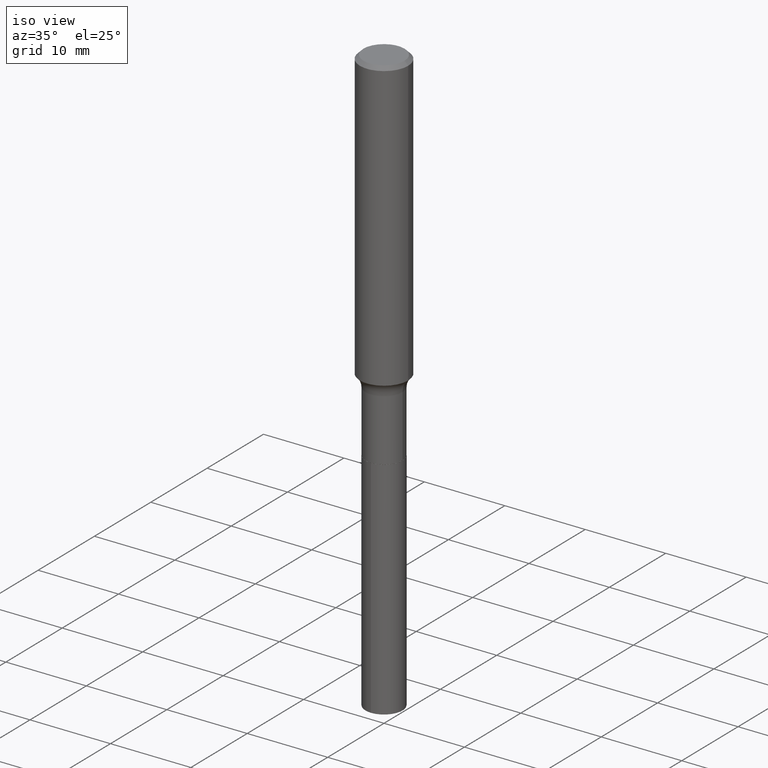
[diagram: clean part render]
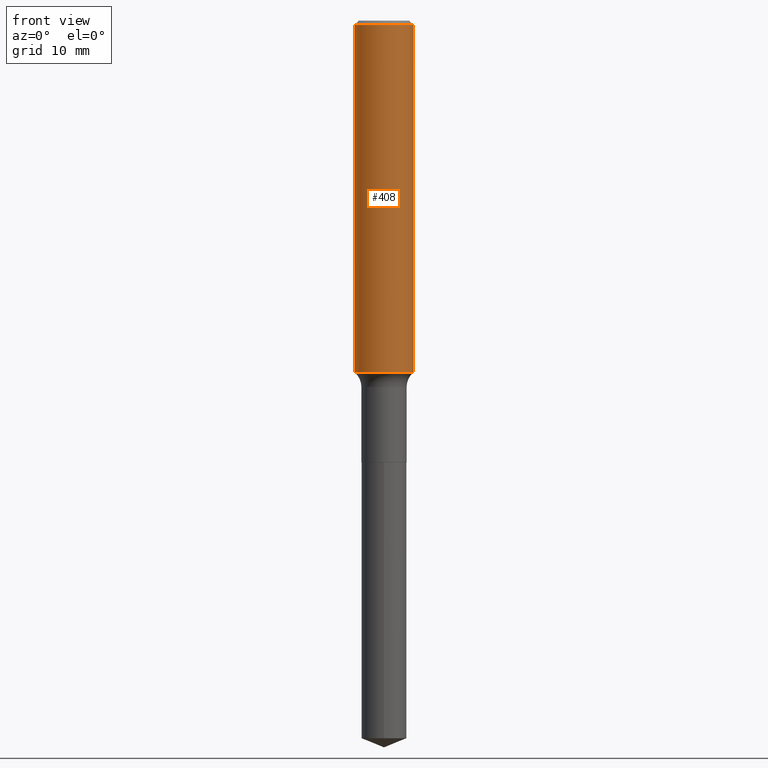
[diagram: tour spotlight — one face highlighted and labeled with its STEP entity id]
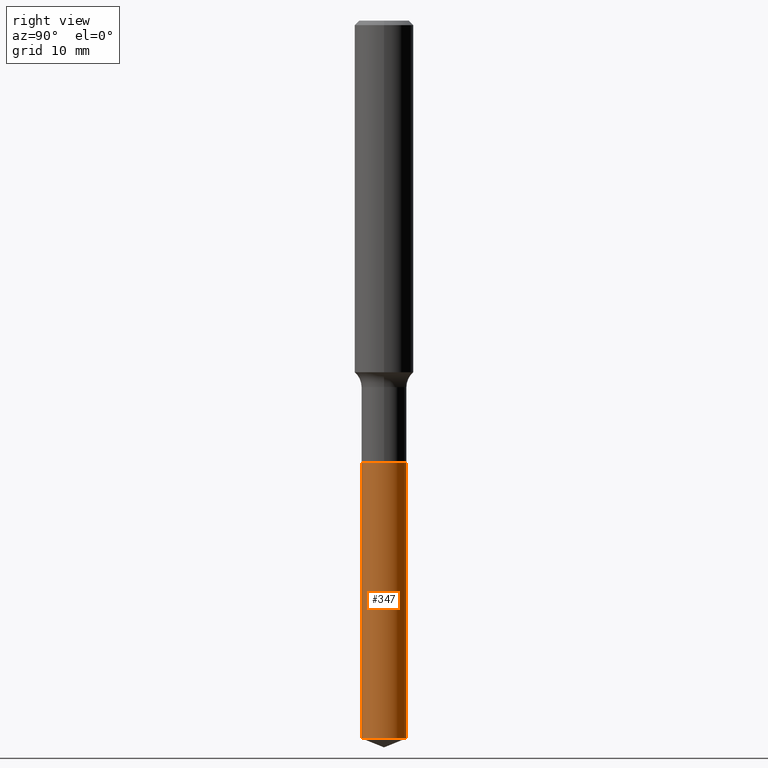
[diagram: tour spotlight — one face highlighted and labeled with its STEP entity id]
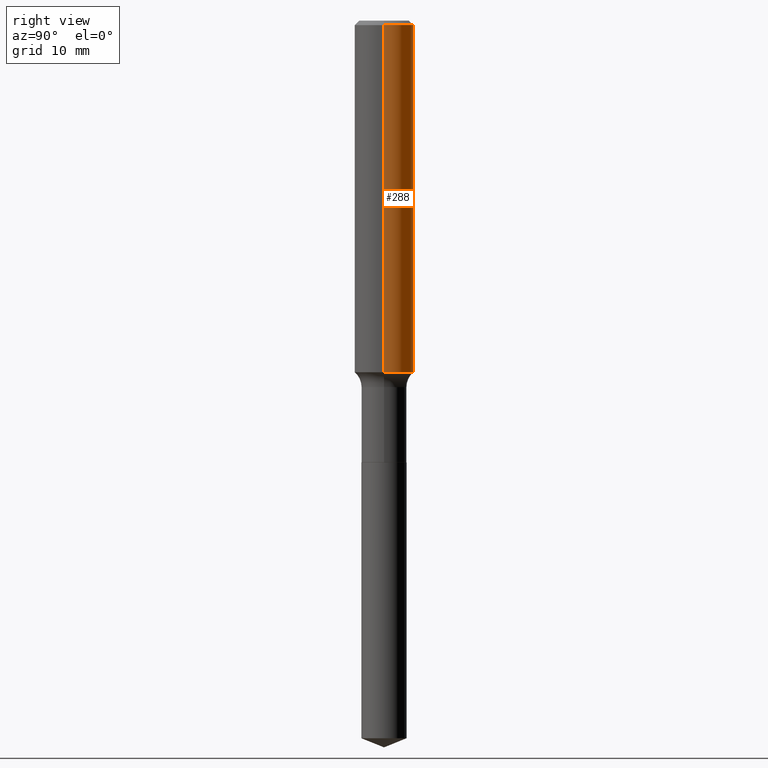
[diagram: tour spotlight — one face highlighted and labeled with its STEP entity id]
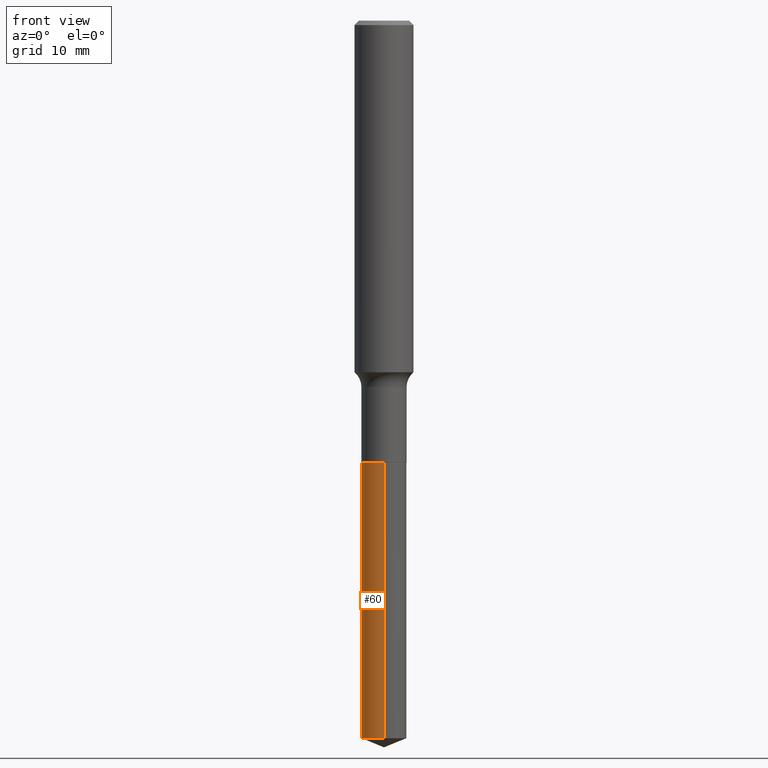
[diagram: tour spotlight — one face highlighted and labeled with its STEP entity id]
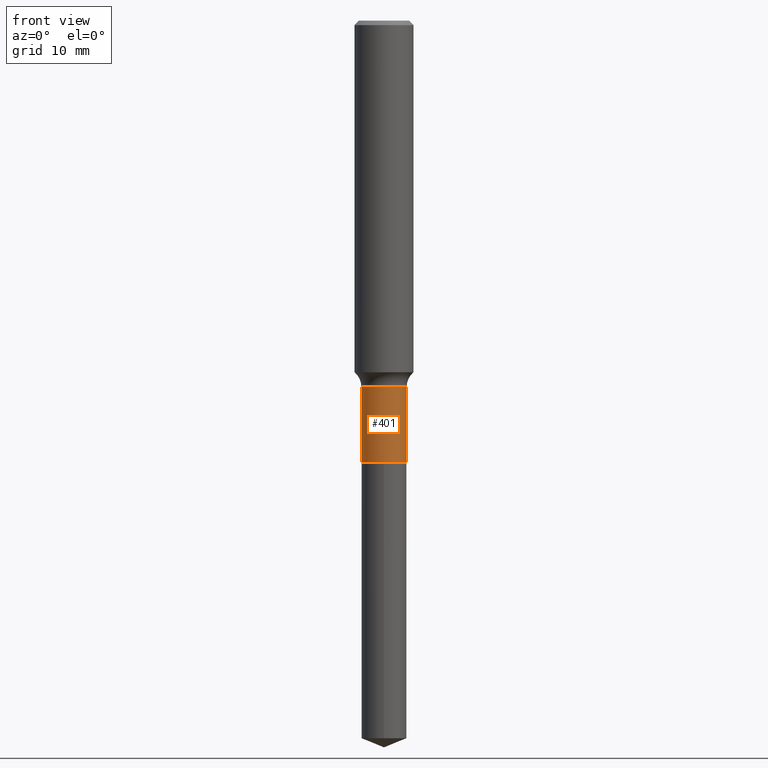
[diagram: tour spotlight — one face highlighted and labeled with its STEP entity id]
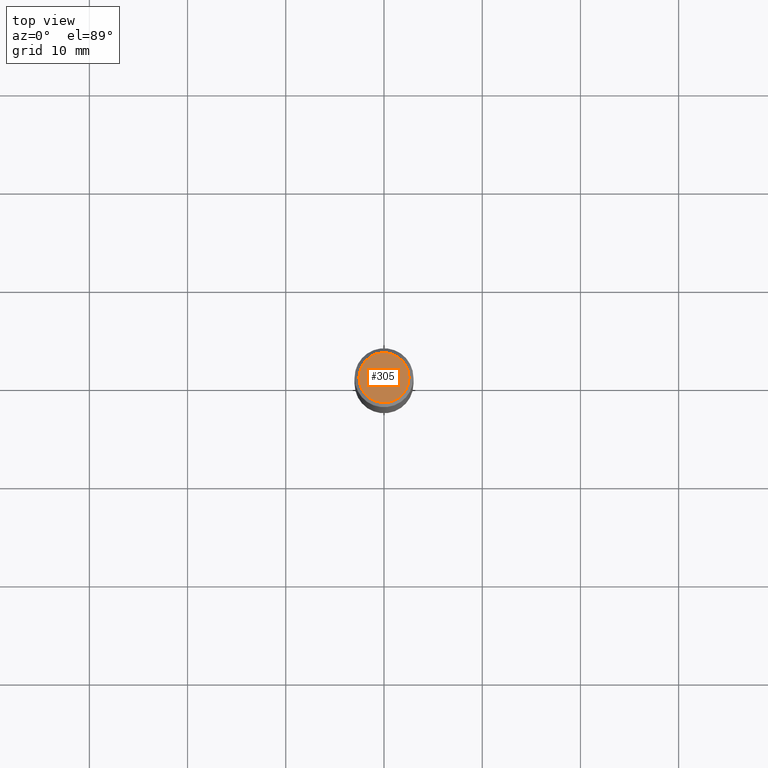
[diagram: tour spotlight — one face highlighted and labeled with its STEP entity id]
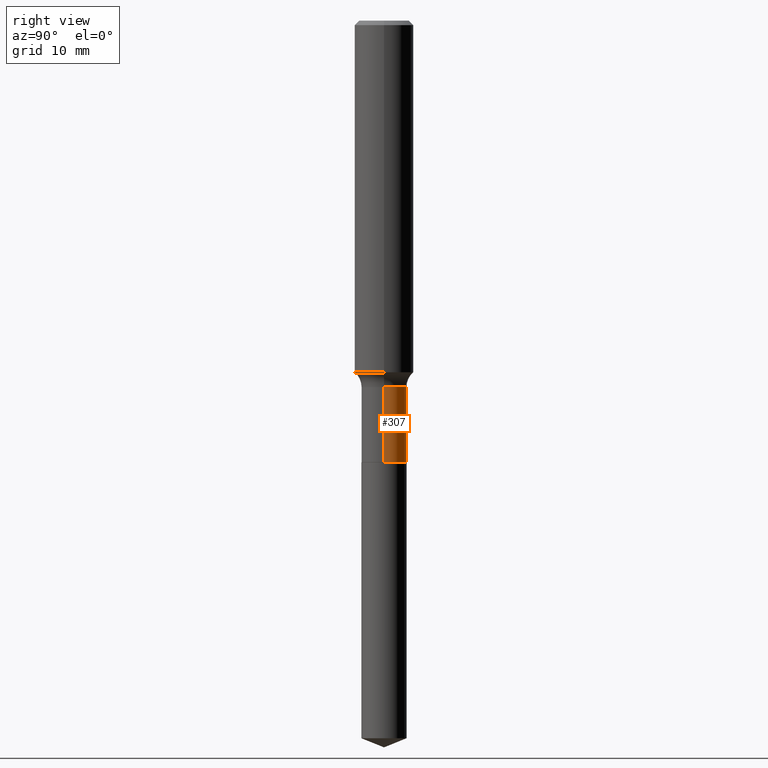
[diagram: tour spotlight — one face highlighted and labeled with its STEP entity id]
A machine part: a face-by-face anatomy tour. The part has 17 B-rep faces; the first image is the clean iso view, then the 7 largest visible faces are spotlighted one at a time (largest first), each with its STEP entity span.

Face 1 — front view, entity #408. In plain terms, the highlighted cylindrical surface (edge-blend (fillet) strip) has radius 2.9997 mm, axis along (-0, 0, 1).
Definition (entity closure, byte-faithful):
#27 = VERTEX_POINT ( 'NONE', #293 ) ;
#32 = DIRECTION ( 'NONE',  ( 1.000000000000000000, -6.982962677686263555E-15, 0.000000000000000000 ) ) ;
#51 = CYLINDRICAL_SURFACE ( 'NONE', #83, 0.1181000000000000799 ) ;
#61 = CARTESIAN_POINT ( 'NONE',  ( 0.1181000000000001909, -5.745275164048953464E-15, -1.409312207134572281 ) ) ;
#64 = VECTOR ( 'NONE', #268, 39.37007874015748143 ) ;
#83 = AXIS2_PLACEMENT_3D ( 'NONE', #123, #434, #355 ) ;
#105 = CARTESIAN_POINT ( 'NONE',  ( 0.1180999999999999966, -8.865394841523548556E-16, -0.01771500000000011607 ) ) ;
#121 = EDGE_CURVE ( 'NONE', #27, #480, #383, .T. ) ;
#123 = CARTESIAN_POINT ( 'NONE',  ( 0.000000000000000000, 0.000000000000000000, 0.000000000000000000 ) ) ;
#136 = VERTEX_POINT ( 'NONE', #105 ) ;
#150 = ORIENTED_EDGE ( 'NONE', *, *, #121, .T. ) ;
#157 = AXIS2_PLACEMENT_3D ( 'NONE', #381, #382, #343 ) ;
#161 = DIRECTION ( 'NONE',  ( -2.445468806185136877E-29, 3.491481338843145188E-15, 1.000000000000000000 ) ) ;
#183 = VECTOR ( 'NONE', #161, 39.37007874015748143 ) ;
#199 = LINE ( 'NONE', #428, #64 ) ;
#224 = ORIENTED_EDGE ( 'NONE', *, *, #319, .F. ) ;
#232 = LINE ( 'NONE', #457, #183 ) ;
#244 = ORIENTED_EDGE ( 'NONE', *, *, #419, .T. ) ;
#262 = DIRECTION ( 'NONE',  ( -2.445468806185136597E-29, 3.491481338843145583E-15, 1.000000000000000000 ) ) ;
#268 = DIRECTION ( 'NONE',  ( -2.445468806185136877E-29, 3.491481338843145188E-15, 1.000000000000000000 ) ) ;
#293 = CARTESIAN_POINT ( 'NONE',  ( -0.1181000000000001909, -4.081436300881524638E-15, -1.409312207134572281 ) ) ;
#300 = EDGE_LOOP ( 'NONE', ( #330, #150, #244, #224 ) ) ;
#312 = CARTESIAN_POINT ( 'NONE',  ( -0.1180999999999999966, -1.652068460933225925E-15, -0.01771500000000011607 ) ) ;
#319 = EDGE_CURVE ( 'NONE', #332, #136, #376, .T. ) ;
#330 = ORIENTED_EDGE ( 'NONE', *, *, #387, .F. ) ;
#332 = VERTEX_POINT ( 'NONE', #312 ) ;
#343 = DIRECTION ( 'NONE',  ( 1.000000000000000000, -6.982962677686266711E-15, 0.000000000000000000 ) ) ;
#355 = DIRECTION ( 'NONE',  ( 1.000000000000000000, -6.982962677686266711E-15, 4.876176775795936353E-29 ) ) ;
#376 = CIRCLE ( 'NONE', #157, 0.1180999999999999966 ) ;
#381 = CARTESIAN_POINT ( 'NONE',  ( 4.332147990156998495E-31, -6.185159191760672860E-17, -0.01771500000000011607 ) ) ;
#382 = DIRECTION ( 'NONE',  ( -2.445468806185136597E-29, 3.491481338843145583E-15, 1.000000000000000000 ) ) ;
#383 = CIRCLE ( 'NONE', #422, 0.1181000000000001632 ) ;
#387 = EDGE_CURVE ( 'NONE', #27, #332, #232, .T. ) ;
#408 = ADVANCED_FACE ( 'NONE', ( #427 ), #51, .T. ) ;
#419 = EDGE_CURVE ( 'NONE', #480, #136, #199, .T. ) ;
#422 = AXIS2_PLACEMENT_3D ( 'NONE', #436, #262, #32 ) ;
#427 = FACE_OUTER_BOUND ( 'NONE', #300, .T. ) ;
#428 = CARTESIAN_POINT ( 'NONE',  ( 0.1181000000000000799, -8.246878922347486570E-16, 5.758764772215004644E-30 ) ) ;
#434 = DIRECTION ( 'NONE',  ( -2.445468806185136597E-29, 3.491481338843145583E-15, 1.000000000000000000 ) ) ;
#436 = CARTESIAN_POINT ( 'NONE',  ( 3.446429040723522126E-29, -4.920587271814204412E-15, -1.409312207134572281 ) ) ;
#457 = CARTESIAN_POINT ( 'NONE',  ( -0.1181000000000000799, 8.391509709326788873E-16, -5.809262341591047988E-30 ) ) ;
#480 = VERTEX_POINT ( 'NONE', #61 ) ;

Face 2 — right view, entity #347. In plain terms, the highlighted cylindrical surface (edge-blend (fillet) strip) has radius 2.3 mm, axis along (-0, 0, 1).
Definition (entity closure, byte-faithful):
#7 = DIRECTION ( 'NONE',  ( -2.445428197971062335E-29, 3.491539492116975712E-15, 1.000000000000000000 ) ) ;
#12 = DIRECTION ( 'NONE',  ( -2.445428197971062615E-29, 3.491539492116975712E-15, 1.000000000000000000 ) ) ;
#21 = CARTESIAN_POINT ( 'NONE',  ( 6.433964472308411631E-16, 0.09054999999998999960, -2.876415425250627766 ) ) ;
#44 = DIRECTION ( 'NONE',  ( -2.445428197971062335E-29, 3.491539492116975712E-15, 1.000000000000000000 ) ) ;
#45 = CARTESIAN_POINT ( 'NONE',  ( 7.034139319316397846E-29, -1.004301504610307500E-14, -2.876415425250627322 ) ) ;
#48 = FACE_OUTER_BOUND ( 'NONE', #147, .T. ) ;
#82 = CARTESIAN_POINT ( 'NONE',  ( 4.331658896395732410E-29, -6.184460895492863090E-15, -1.771299999999999653 ) ) ;
#85 = LINE ( 'NONE', #386, #111 ) ;
#92 = ORIENTED_EDGE ( 'NONE', *, *, #340, .T. ) ;
#93 = VERTEX_POINT ( 'NONE', #356 ) ;
#111 = VECTOR ( 'NONE', #237, 39.37007874015748143 ) ;
#119 = CARTESIAN_POINT ( 'NONE',  ( 6.433964472308412617E-16, 0.09054999999999382987, -1.771300000000000097 ) ) ;
#122 = DIRECTION ( 'NONE',  ( -6.982962677686266711E-15, -1.000000000000000000, 3.016949744521549444E-15 ) ) ;
#126 = CARTESIAN_POINT ( 'NONE',  ( -6.323072704644481808E-16, -0.09055000000000619498, -1.771299999999999430 ) ) ;
#135 = VECTOR ( 'NONE', #12, 39.37007874015748143 ) ;
#147 = EDGE_LOOP ( 'NONE', ( #92, #255, #407, #325 ) ) ;
#148 = EDGE_CURVE ( 'NONE', #93, #403, #459, .T. ) ;
#176 = AXIS2_PLACEMENT_3D ( 'NONE', #82, #7, #122 ) ;
#184 = CARTESIAN_POINT ( 'NONE',  ( 4.331658896395732410E-29, -6.184460895492863090E-15, -1.771299999999999653 ) ) ;
#186 = DIRECTION ( 'NONE',  ( -2.445428197971062335E-29, 3.491539492116975712E-15, 1.000000000000000000 ) ) ;
#196 = AXIS2_PLACEMENT_3D ( 'NONE', #45, #44, #349 ) ;
#237 = DIRECTION ( 'NONE',  ( -2.445428197971062615E-29, 3.491539492116975712E-15, 1.000000000000000000 ) ) ;
#241 = CARTESIAN_POINT ( 'NONE',  ( -6.323072704644212610E-16, -0.09055000000001005300, -2.876415425250626878 ) ) ;
#255 = ORIENTED_EDGE ( 'NONE', *, *, #339, .T. ) ;
#257 = DIRECTION ( 'NONE',  ( -6.982962677686266711E-15, -1.000000000000000000, 3.016949744521549444E-15 ) ) ;
#271 = LINE ( 'NONE', #126, #135 ) ;
#325 = ORIENTED_EDGE ( 'NONE', *, *, #334, .F. ) ;
#334 = EDGE_CURVE ( 'NONE', #440, #93, #271, .T. ) ;
#339 = EDGE_CURVE ( 'NONE', #490, #403, #85, .T. ) ;
#340 = EDGE_CURVE ( 'NONE', #440, #490, #444, .T. ) ;
#347 = ADVANCED_FACE ( 'NONE', ( #48 ), #425, .T. ) ;
#349 = DIRECTION ( 'NONE',  ( -6.982962677686266711E-15, -1.000000000000000000, 6.033899489043098888E-15 ) ) ;
#356 = CARTESIAN_POINT ( 'NONE',  ( -6.323072704644481808E-16, -0.09055000000000619498, -1.771299999999999430 ) ) ;
#364 = AXIS2_PLACEMENT_3D ( 'NONE', #184, #186, #257 ) ;
#386 = CARTESIAN_POINT ( 'NONE',  ( 6.433964472308139474E-16, 0.09054999999999382987, -1.771300000000000097 ) ) ;
#403 = VERTEX_POINT ( 'NONE', #119 ) ;
#407 = ORIENTED_EDGE ( 'NONE', *, *, #148, .F. ) ;
#425 = CYLINDRICAL_SURFACE ( 'NONE', #176, 0.09055000000000000548 ) ;
#440 = VERTEX_POINT ( 'NONE', #241 ) ;
#444 = CIRCLE ( 'NONE', #196, 0.09055000000000000548 ) ;
#459 = CIRCLE ( 'NONE', #364, 0.09055000000000000548 ) ;
#490 = VERTEX_POINT ( 'NONE', #21 ) ;

Face 3 — right view, entity #288. In plain terms, the highlighted cylindrical surface (edge-blend (fillet) strip) has radius 2.9997 mm, axis along (-0, 0, 1).
Definition (entity closure, byte-faithful):
#27 = VERTEX_POINT ( 'NONE', #293 ) ;
#34 = EDGE_CURVE ( 'NONE', #480, #27, #214, .T. ) ;
#61 = CARTESIAN_POINT ( 'NONE',  ( 0.1181000000000001909, -5.745275164048953464E-15, -1.409312207134572281 ) ) ;
#62 = DIRECTION ( 'NONE',  ( -2.445468806185136597E-29, 3.491481338843145583E-15, 1.000000000000000000 ) ) ;
#64 = VECTOR ( 'NONE', #268, 39.37007874015748143 ) ;
#65 = ORIENTED_EDGE ( 'NONE', *, *, #34, .T. ) ;
#68 = DIRECTION ( 'NONE',  ( 1.000000000000000000, -6.982962677686266711E-15, 0.000000000000000000 ) ) ;
#70 = CARTESIAN_POINT ( 'NONE',  ( 0.000000000000000000, 0.000000000000000000, 0.000000000000000000 ) ) ;
#105 = CARTESIAN_POINT ( 'NONE',  ( 0.1180999999999999966, -8.865394841523548556E-16, -0.01771500000000011607 ) ) ;
#118 = CIRCLE ( 'NONE', #363, 0.1180999999999999966 ) ;
#136 = VERTEX_POINT ( 'NONE', #105 ) ;
#146 = DIRECTION ( 'NONE',  ( 1.000000000000000000, -6.982962677686266711E-15, 4.876176775795936353E-29 ) ) ;
#161 = DIRECTION ( 'NONE',  ( -2.445468806185136877E-29, 3.491481338843145188E-15, 1.000000000000000000 ) ) ;
#164 = EDGE_CURVE ( 'NONE', #136, #332, #118, .T. ) ;
#178 = ORIENTED_EDGE ( 'NONE', *, *, #164, .F. ) ;
#183 = VECTOR ( 'NONE', #161, 39.37007874015748143 ) ;
#199 = LINE ( 'NONE', #428, #64 ) ;
#214 = CIRCLE ( 'NONE', #468, 0.1181000000000001632 ) ;
#232 = LINE ( 'NONE', #457, #183 ) ;
#246 = AXIS2_PLACEMENT_3D ( 'NONE', #70, #486, #146 ) ;
#254 = EDGE_LOOP ( 'NONE', ( #65, #367, #178, #412 ) ) ;
#268 = DIRECTION ( 'NONE',  ( -2.445468806185136877E-29, 3.491481338843145188E-15, 1.000000000000000000 ) ) ;
#288 = ADVANCED_FACE ( 'NONE', ( #449 ), #331, .T. ) ;
#291 = DIRECTION ( 'NONE',  ( 1.000000000000000000, -6.982962677686263555E-15, 0.000000000000000000 ) ) ;
#293 = CARTESIAN_POINT ( 'NONE',  ( -0.1181000000000001909, -4.081436300881524638E-15, -1.409312207134572281 ) ) ;
#312 = CARTESIAN_POINT ( 'NONE',  ( -0.1180999999999999966, -1.652068460933225925E-15, -0.01771500000000011607 ) ) ;
#318 = CARTESIAN_POINT ( 'NONE',  ( 3.446429040723522126E-29, -4.920587271814204412E-15, -1.409312207134572281 ) ) ;
#331 = CYLINDRICAL_SURFACE ( 'NONE', #246, 0.1181000000000000799 ) ;
#332 = VERTEX_POINT ( 'NONE', #312 ) ;
#337 = DIRECTION ( 'NONE',  ( -2.445468806185136597E-29, 3.491481338843145583E-15, 1.000000000000000000 ) ) ;
#363 = AXIS2_PLACEMENT_3D ( 'NONE', #411, #337, #68 ) ;
#367 = ORIENTED_EDGE ( 'NONE', *, *, #387, .T. ) ;
#387 = EDGE_CURVE ( 'NONE', #27, #332, #232, .T. ) ;
#411 = CARTESIAN_POINT ( 'NONE',  ( 4.332147990156998495E-31, -6.185159191760672860E-17, -0.01771500000000011607 ) ) ;
#412 = ORIENTED_EDGE ( 'NONE', *, *, #419, .F. ) ;
#419 = EDGE_CURVE ( 'NONE', #480, #136, #199, .T. ) ;
#428 = CARTESIAN_POINT ( 'NONE',  ( 0.1181000000000000799, -8.246878922347486570E-16, 5.758764772215004644E-30 ) ) ;
#449 = FACE_OUTER_BOUND ( 'NONE', #254, .T. ) ;
#457 = CARTESIAN_POINT ( 'NONE',  ( -0.1181000000000000799, 8.391509709326788873E-16, -5.809262341591047988E-30 ) ) ;
#468 = AXIS2_PLACEMENT_3D ( 'NONE', #318, #62, #291 ) ;
#480 = VERTEX_POINT ( 'NONE', #61 ) ;
#486 = DIRECTION ( 'NONE',  ( -2.445468806185136597E-29, 3.491481338843145583E-15, 1.000000000000000000 ) ) ;

Face 4 — front view, entity #60. In plain terms, the highlighted cylindrical surface (edge-blend (fillet) strip) has radius 2.3 mm, axis along (-0, 0, 1).
Definition (entity closure, byte-faithful):
#6 = DIRECTION ( 'NONE',  ( -2.445428197971062335E-29, 3.491539492116975712E-15, 1.000000000000000000 ) ) ;
#10 = DIRECTION ( 'NONE',  ( -2.445428197971062335E-29, 3.491539492116975712E-15, 1.000000000000000000 ) ) ;
#12 = DIRECTION ( 'NONE',  ( -2.445428197971062615E-29, 3.491539492116975712E-15, 1.000000000000000000 ) ) ;
#21 = CARTESIAN_POINT ( 'NONE',  ( 6.433964472308411631E-16, 0.09054999999998999960, -2.876415425250627766 ) ) ;
#40 = DIRECTION ( 'NONE',  ( -2.445428197971062335E-29, 3.491539492116975712E-15, 1.000000000000000000 ) ) ;
#55 = CIRCLE ( 'NONE', #333, 0.09055000000000000548 ) ;
#60 = ADVANCED_FACE ( 'NONE', ( #470 ), #212, .T. ) ;
#72 = AXIS2_PLACEMENT_3D ( 'NONE', #491, #40, #315 ) ;
#85 = LINE ( 'NONE', #386, #111 ) ;
#87 = DIRECTION ( 'NONE',  ( -6.982962677686266711E-15, -1.000000000000000000, 6.033899489043098888E-15 ) ) ;
#93 = VERTEX_POINT ( 'NONE', #356 ) ;
#102 = CARTESIAN_POINT ( 'NONE',  ( 4.331658896395732410E-29, -6.184460895492863090E-15, -1.771299999999999653 ) ) ;
#111 = VECTOR ( 'NONE', #237, 39.37007874015748143 ) ;
#119 = CARTESIAN_POINT ( 'NONE',  ( 6.433964472308412617E-16, 0.09054999999999382987, -1.771300000000000097 ) ) ;
#126 = CARTESIAN_POINT ( 'NONE',  ( -6.323072704644481808E-16, -0.09055000000000619498, -1.771299999999999430 ) ) ;
#135 = VECTOR ( 'NONE', #12, 39.37007874015748143 ) ;
#201 = CARTESIAN_POINT ( 'NONE',  ( 7.034139319316397846E-29, -1.004301504610307500E-14, -2.876415425250627322 ) ) ;
#212 = CYLINDRICAL_SURFACE ( 'NONE', #303, 0.09055000000000000548 ) ;
#213 = ORIENTED_EDGE ( 'NONE', *, *, #334, .T. ) ;
#221 = ORIENTED_EDGE ( 'NONE', *, *, #380, .T. ) ;
#237 = DIRECTION ( 'NONE',  ( -2.445428197971062615E-29, 3.491539492116975712E-15, 1.000000000000000000 ) ) ;
#241 = CARTESIAN_POINT ( 'NONE',  ( -6.323072704644212610E-16, -0.09055000000001005300, -2.876415425250626878 ) ) ;
#260 = ORIENTED_EDGE ( 'NONE', *, *, #339, .F. ) ;
#271 = LINE ( 'NONE', #126, #135 ) ;
#280 = DIRECTION ( 'NONE',  ( -6.982962677686266711E-15, -1.000000000000000000, 3.016949744521549444E-15 ) ) ;
#285 = CIRCLE ( 'NONE', #72, 0.09055000000000000548 ) ;
#292 = ORIENTED_EDGE ( 'NONE', *, *, #328, .F. ) ;
#303 = AXIS2_PLACEMENT_3D ( 'NONE', #102, #10, #280 ) ;
#315 = DIRECTION ( 'NONE',  ( -6.982962677686266711E-15, -1.000000000000000000, 3.016949744521549444E-15 ) ) ;
#328 = EDGE_CURVE ( 'NONE', #403, #93, #285, .T. ) ;
#333 = AXIS2_PLACEMENT_3D ( 'NONE', #201, #6, #87 ) ;
#334 = EDGE_CURVE ( 'NONE', #440, #93, #271, .T. ) ;
#339 = EDGE_CURVE ( 'NONE', #490, #403, #85, .T. ) ;
#356 = CARTESIAN_POINT ( 'NONE',  ( -6.323072704644481808E-16, -0.09055000000000619498, -1.771299999999999430 ) ) ;
#380 = EDGE_CURVE ( 'NONE', #490, #440, #55, .T. ) ;
#386 = CARTESIAN_POINT ( 'NONE',  ( 6.433964472308139474E-16, 0.09054999999999382987, -1.771300000000000097 ) ) ;
#403 = VERTEX_POINT ( 'NONE', #119 ) ;
#440 = VERTEX_POINT ( 'NONE', #241 ) ;
#450 = EDGE_LOOP ( 'NONE', ( #260, #221, #213, #292 ) ) ;
#470 = FACE_OUTER_BOUND ( 'NONE', #450, .T. ) ;
#490 = VERTEX_POINT ( 'NONE', #21 ) ;
#491 = CARTESIAN_POINT ( 'NONE',  ( 4.331658896395732410E-29, -6.184460895492863090E-15, -1.771299999999999653 ) ) ;

Face 5 — front view, entity #401. In plain terms, the highlighted cylindrical surface (edge-blend (fillet) strip) has radius 2.3 mm, axis along (-0, 0, 1).
Definition (entity closure, byte-faithful):
#9 = CYLINDRICAL_SURFACE ( 'NONE', #460, 0.09054999999999999161 ) ;
#14 = CARTESIAN_POINT ( 'NONE',  ( 3.591904582524728769E-29, -5.128287790492811621E-15, -1.468799999999999883 ) ) ;
#17 = ORIENTED_EDGE ( 'NONE', *, *, #94, .F. ) ;
#26 = ORIENTED_EDGE ( 'NONE', *, *, #234, .T. ) ;
#46 = VECTOR ( 'NONE', #378, 39.37007874015748143 ) ;
#69 = VERTEX_POINT ( 'NONE', #392 ) ;
#79 = CARTESIAN_POINT ( 'NONE',  ( 4.330436161992639608E-29, -6.182715154823442375E-15, -1.770799999999999930 ) ) ;
#94 = EDGE_CURVE ( 'NONE', #435, #69, #431, .T. ) ;
#128 = VECTOR ( 'NONE', #133, 39.37007874015748143 ) ;
#133 = DIRECTION ( 'NONE',  ( -2.445468806185136877E-29, 3.491481338843145188E-15, 1.000000000000000000 ) ) ;
#138 = DIRECTION ( 'NONE',  ( -2.445468806185136597E-29, 3.491481338843145583E-15, 1.000000000000000000 ) ) ;
#149 = LINE ( 'NONE', #335, #46 ) ;
#156 = DIRECTION ( 'NONE',  ( -2.445468806185136597E-29, 3.491481338843145583E-15, 1.000000000000000000 ) ) ;
#158 = CARTESIAN_POINT ( 'NONE',  ( 0.000000000000000000, 0.000000000000000000, 0.000000000000000000 ) ) ;
#170 = DIRECTION ( 'NONE',  ( 1.000000000000000000, -6.982962677686268288E-15, 0.000000000000000000 ) ) ;
#188 = DIRECTION ( 'NONE',  ( -2.445468806185136597E-29, 3.491481338843145583E-15, 1.000000000000000000 ) ) ;
#191 = CARTESIAN_POINT ( 'NONE',  ( -0.09055000000000000548, -5.012105025427356931E-15, -1.770799999999999930 ) ) ;
#205 = CIRCLE ( 'NONE', #222, 0.09055000000000000548 ) ;
#216 = ORIENTED_EDGE ( 'NONE', *, *, #464, .F. ) ;
#222 = AXIS2_PLACEMENT_3D ( 'NONE', #79, #188, #341 ) ;
#227 = CARTESIAN_POINT ( 'NONE',  ( 0.09055000000000000548, -6.815022425287933844E-15, -1.770799999999999930 ) ) ;
#234 = EDGE_CURVE ( 'NONE', #302, #69, #149, .T. ) ;
#272 = FACE_OUTER_BOUND ( 'NONE', #379, .T. ) ;
#294 = VERTEX_POINT ( 'NONE', #191 ) ;
#302 = VERTEX_POINT ( 'NONE', #227 ) ;
#317 = CARTESIAN_POINT ( 'NONE',  ( -0.09054999999999997773, -5.012105025427356931E-15, -1.468799999999999883 ) ) ;
#323 = EDGE_CURVE ( 'NONE', #294, #302, #205, .T. ) ;
#335 = CARTESIAN_POINT ( 'NONE',  ( 0.09054999999999999161, -6.323072704644913710E-16, 4.415378070483219406E-30 ) ) ;
#338 = ORIENTED_EDGE ( 'NONE', *, *, #323, .T. ) ;
#341 = DIRECTION ( 'NONE',  ( 1.000000000000000000, -6.982962677686266711E-15, 0.000000000000000000 ) ) ;
#358 = AXIS2_PLACEMENT_3D ( 'NONE', #14, #138, #170 ) ;
#368 = LINE ( 'NONE', #402, #128 ) ;
#378 = DIRECTION ( 'NONE',  ( -2.445468806185136877E-29, 3.491481338843145188E-15, 1.000000000000000000 ) ) ;
#379 = EDGE_LOOP ( 'NONE', ( #216, #338, #26, #17 ) ) ;
#391 = DIRECTION ( 'NONE',  ( 1.000000000000000000, -6.982962677686266711E-15, 4.876176775795935793E-29 ) ) ;
#392 = CARTESIAN_POINT ( 'NONE',  ( 0.09054999999999997773, -5.760595060957303090E-15, -1.468799999999999883 ) ) ;
#401 = ADVANCED_FACE ( 'NONE', ( #272 ), #9, .T. ) ;
#402 = CARTESIAN_POINT ( 'NONE',  ( -0.09054999999999999161, 6.433964472307706587E-16, -4.454095724225816518E-30 ) ) ;
#431 = CIRCLE ( 'NONE', #358, 0.09054999999999997773 ) ;
#435 = VERTEX_POINT ( 'NONE', #317 ) ;
#460 = AXIS2_PLACEMENT_3D ( 'NONE', #158, #156, #391 ) ;
#464 = EDGE_CURVE ( 'NONE', #294, #435, #368, .T. ) ;

Face 6 — top view, entity #305. In plain terms, the highlighted planar face has unit normal (0, -0, -1).
Definition (entity closure, byte-faithful):
#4 = CARTESIAN_POINT ( 'NONE',  ( -0.1003850000000000159, 7.319105043583384717E-16, -2.049109640503831060E-17 ) ) ;
#23 = ORIENTED_EDGE ( 'NONE', *, *, #488, .T. ) ;
#25 = DIRECTION ( 'NONE',  ( 1.000000000000000000, -6.982962677686266711E-15, 4.875668750515085695E-29 ) ) ;
#35 = DIRECTION ( 'NONE',  ( -2.445468806185136597E-29, 3.491481338843145583E-15, 1.000000000000000000 ) ) ;
#113 = CARTESIAN_POINT ( 'NONE',  ( 2.505516853152066359E-46, -3.577214035530481610E-32, -1.024554820251665005E-17 ) ) ;
#134 = CARTESIAN_POINT ( 'NONE',  ( 5.011033706304132718E-46, -7.154428071060963220E-32, -2.049109640503330010E-17 ) ) ;
#189 = AXIS2_PLACEMENT_3D ( 'NONE', #113, #417, #484 ) ;
#195 = CARTESIAN_POINT ( 'NONE',  ( 0.1003850000000000159, -7.803837484803599345E-16, -2.049109640502812012E-17 ) ) ;
#219 = ORIENTED_EDGE ( 'NONE', *, *, #252, .T. ) ;
#238 = AXIS2_PLACEMENT_3D ( 'NONE', #134, #284, #25 ) ;
#252 = EDGE_CURVE ( 'NONE', #336, #442, #295, .T. ) ;
#284 = DIRECTION ( 'NONE',  ( -2.445468806185136597E-29, 3.491481338843145583E-15, 1.000000000000000000 ) ) ;
#295 = CIRCLE ( 'NONE', #342, 0.1003850000000000159 ) ;
#299 = FACE_OUTER_BOUND ( 'NONE', #446, .T. ) ;
#301 = DIRECTION ( 'NONE',  ( 1.000000000000000000, -6.982962677686266711E-15, 4.875668750515085695E-29 ) ) ;
#305 = ADVANCED_FACE ( 'NONE', ( #299 ), #452, .F. ) ;
#336 = VERTEX_POINT ( 'NONE', #195 ) ;
#342 = AXIS2_PLACEMENT_3D ( 'NONE', #409, #35, #301 ) ;
#398 = CIRCLE ( 'NONE', #238, 0.1003850000000000159 ) ;
#409 = CARTESIAN_POINT ( 'NONE',  ( 5.011033706304132718E-46, -7.154428071060963220E-32, -2.049109640503330010E-17 ) ) ;
#417 = DIRECTION ( 'NONE',  ( 2.438088387897960049E-29, -3.491481338843145188E-15, -1.000000000000000000 ) ) ;
#442 = VERTEX_POINT ( 'NONE', #4 ) ;
#446 = EDGE_LOOP ( 'NONE', ( #23, #219 ) ) ;
#452 = PLANE ( 'NONE',  #189 ) ;
#484 = DIRECTION ( 'NONE',  ( -1.000000000000000000, 6.982962677686265922E-15, -4.876176775795935793E-29 ) ) ;
#488 = EDGE_CURVE ( 'NONE', #442, #336, #398, .T. ) ;

Face 7 — right view, entity #307. In plain terms, the highlighted cylindrical surface (edge-blend (fillet) strip) has radius 2.3 mm, axis along (-0, 0, 1).
Definition (entity closure, byte-faithful):
#30 = AXIS2_PLACEMENT_3D ( 'NONE', #226, #456, #259 ) ;
#46 = VECTOR ( 'NONE', #378, 39.37007874015748143 ) ;
#69 = VERTEX_POINT ( 'NONE', #392 ) ;
#76 = CYLINDRICAL_SURFACE ( 'NONE', #30, 0.09054999999999999161 ) ;
#101 = EDGE_LOOP ( 'NONE', ( #263, #353, #476, #251 ) ) ;
#128 = VECTOR ( 'NONE', #133, 39.37007874015748143 ) ;
#133 = DIRECTION ( 'NONE',  ( -2.445468806185136877E-29, 3.491481338843145188E-15, 1.000000000000000000 ) ) ;
#144 = FACE_OUTER_BOUND ( 'NONE', #101, .T. ) ;
#149 = LINE ( 'NONE', #335, #46 ) ;
#152 = CIRCLE ( 'NONE', #228, 0.09055000000000000548 ) ;
#153 = DIRECTION ( 'NONE',  ( 1.000000000000000000, -6.982962677686266711E-15, 0.000000000000000000 ) ) ;
#179 = EDGE_CURVE ( 'NONE', #302, #294, #152, .T. ) ;
#191 = CARTESIAN_POINT ( 'NONE',  ( -0.09055000000000000548, -5.012105025427356931E-15, -1.770799999999999930 ) ) ;
#204 = DIRECTION ( 'NONE',  ( -2.445468806185136597E-29, 3.491481338843145583E-15, 1.000000000000000000 ) ) ;
#223 = DIRECTION ( 'NONE',  ( -2.445468806185136597E-29, 3.491481338843145583E-15, 1.000000000000000000 ) ) ;
#226 = CARTESIAN_POINT ( 'NONE',  ( 0.000000000000000000, 0.000000000000000000, 0.000000000000000000 ) ) ;
#227 = CARTESIAN_POINT ( 'NONE',  ( 0.09055000000000000548, -6.815022425287933844E-15, -1.770799999999999930 ) ) ;
#228 = AXIS2_PLACEMENT_3D ( 'NONE', #413, #223, #153 ) ;
#234 = EDGE_CURVE ( 'NONE', #302, #69, #149, .T. ) ;
#251 = ORIENTED_EDGE ( 'NONE', *, *, #234, .F. ) ;
#259 = DIRECTION ( 'NONE',  ( 1.000000000000000000, -6.982962677686266711E-15, 4.876176775795935793E-29 ) ) ;
#263 = ORIENTED_EDGE ( 'NONE', *, *, #179, .T. ) ;
#294 = VERTEX_POINT ( 'NONE', #191 ) ;
#302 = VERTEX_POINT ( 'NONE', #227 ) ;
#307 = ADVANCED_FACE ( 'NONE', ( #144 ), #76, .T. ) ;
#317 = CARTESIAN_POINT ( 'NONE',  ( -0.09054999999999997773, -5.012105025427356931E-15, -1.468799999999999883 ) ) ;
#335 = CARTESIAN_POINT ( 'NONE',  ( 0.09054999999999999161, -6.323072704644913710E-16, 4.415378070483219406E-30 ) ) ;
#353 = ORIENTED_EDGE ( 'NONE', *, *, #464, .T. ) ;
#368 = LINE ( 'NONE', #402, #128 ) ;
#378 = DIRECTION ( 'NONE',  ( -2.445468806185136877E-29, 3.491481338843145188E-15, 1.000000000000000000 ) ) ;
#392 = CARTESIAN_POINT ( 'NONE',  ( 0.09054999999999997773, -5.760595060957303090E-15, -1.468799999999999883 ) ) ;
#402 = CARTESIAN_POINT ( 'NONE',  ( -0.09054999999999999161, 6.433964472307706587E-16, -4.454095724225816518E-30 ) ) ;
#405 = AXIS2_PLACEMENT_3D ( 'NONE', #473, #204, #471 ) ;
#413 = CARTESIAN_POINT ( 'NONE',  ( 4.330436161992639608E-29, -6.182715154823442375E-15, -1.770799999999999930 ) ) ;
#435 = VERTEX_POINT ( 'NONE', #317 ) ;
#455 = CIRCLE ( 'NONE', #405, 0.09054999999999997773 ) ;
#456 = DIRECTION ( 'NONE',  ( -2.445468806185136597E-29, 3.491481338843145583E-15, 1.000000000000000000 ) ) ;
#464 = EDGE_CURVE ( 'NONE', #294, #435, #368, .T. ) ;
#471 = DIRECTION ( 'NONE',  ( 1.000000000000000000, -6.982962677686268288E-15, 0.000000000000000000 ) ) ;
#472 = EDGE_CURVE ( 'NONE', #69, #435, #455, .T. ) ;
#473 = CARTESIAN_POINT ( 'NONE',  ( 3.591904582524728769E-29, -5.128287790492811621E-15, -1.468799999999999883 ) ) ;
#476 = ORIENTED_EDGE ( 'NONE', *, *, #472, .F. ) ;